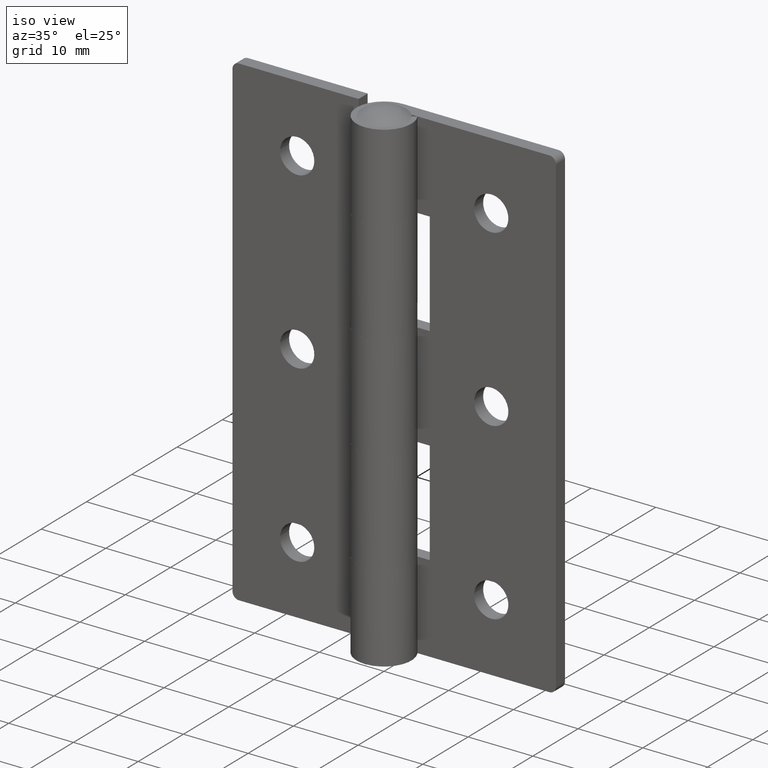
[diagram: clean part render]
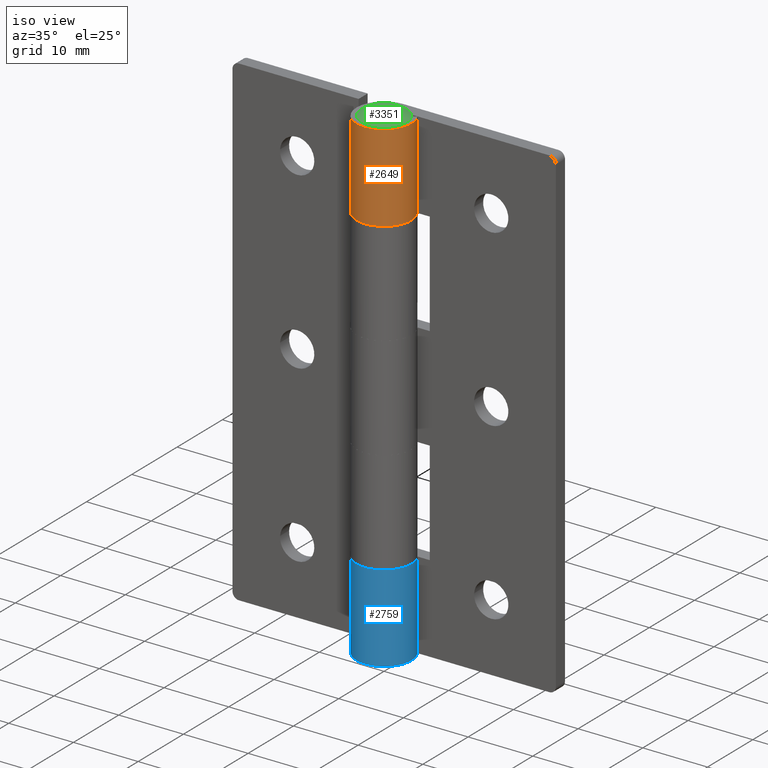
[diagram: same view with three faces highlighted in distinct colors, each labeled with its STEP entity id]
A machine part, iso view with three faces highlighted in distinct colors.
Their STEP definitions:

[orange] entity #2649 — the highlighted face is a freeform B-spline surface patch.
#2436=CARTESIAN_POINT('',(3.636275567115340,2.200000000000000,61.500000000000000));
#2437=VERTEX_POINT('',#2436);
#2443=CARTESIAN_POINT('',(0.0,4.250000000000000,61.500000000000000));
#2444=VERTEX_POINT('',#2443);
#2445=CARTESIAN_POINT('',(3.636275567115340,2.200000000000003,61.500000000000000));
#2446=CARTESIAN_POINT('',(5.333369332345939,-0.605045724368995,61.499999999999993));
#2447=CARTESIAN_POINT('',(3.051051400271963,-2.958645864732462,61.500000000000000));
#2448=CARTESIAN_POINT('',(0.768733468197987,-5.312246005095930,61.499999999999993));
#2449=CARTESIAN_POINT('',(-2.087163146474181,-3.702195294686653,61.500000000000000));
#2450=CARTESIAN_POINT('',(-4.943059761146343,-2.092144584277380,61.499999999999993));
#2451=CARTESIAN_POINT('',(-4.110768176534545,1.078927707861306,61.500000000000000));
#2452=CARTESIAN_POINT('',(-3.278476591922745,4.250000000000001,61.499999999999993));
#2453=CARTESIAN_POINT('',(0.0,4.250000000000000,61.500000000000000));
#2461=(BOUNDED_CURVE()B_SPLINE_CURVE(2,(#2445,#2446,#2447,#2448,#2449,#2450,#2451,#2452,#2453),.UNSPECIFIED.,.F.,.U.)B_SPLINE_CURVE_WITH_KNOTS((3,2,2,2,3),(0.0,0.250000000000000,0.500000000000000,0.750000000000000,1.0),.UNSPECIFIED.)CURVE()GEOMETRIC_REPRESENTATION_ITEM()RATIONAL_B_SPLINE_CURVE((1.0,0.791790800346338,1.0,0.791790800346338,1.0,0.791790800346338,1.0,0.791790800346338,1.0))REPRESENTATION_ITEM(''));
#2462=EDGE_CURVE('',#2437,#2444,#2461,.T.);
#2556=CARTESIAN_POINT('',(-7.806866E-016,4.250000000000000,74.999985000000109));
#2557=VERTEX_POINT('',#2556);
#2563=CARTESIAN_POINT('',(3.636275567115340,2.200000000000000,74.999985000000109));
#2564=VERTEX_POINT('',#2563);
#2565=CARTESIAN_POINT('',(3.636275567115340,2.200000000000003,74.999985000000109));
#2566=CARTESIAN_POINT('',(5.333369332345939,-0.605045724368995,74.999985000000109));
#2567=CARTESIAN_POINT('',(3.051051400271963,-2.958645864732462,74.999985000000109));
#2568=CARTESIAN_POINT('',(0.768733468197987,-5.312246005095930,74.999985000000109));
#2569=CARTESIAN_POINT('',(-2.087163146474181,-3.702195294686653,74.999985000000109));
#2570=CARTESIAN_POINT('',(-4.943059761146343,-2.092144584277380,74.999985000000109));
#2571=CARTESIAN_POINT('',(-4.110768176534545,1.078927707861306,74.999985000000109));
#2572=CARTESIAN_POINT('',(-3.278476591922745,4.250000000000001,74.999985000000109));
#2573=CARTESIAN_POINT('',(0.0,4.250000000000000,74.999985000000109));
#2581=(BOUNDED_CURVE()B_SPLINE_CURVE(2,(#2565,#2566,#2567,#2568,#2569,#2570,#2571,#2572,#2573),.UNSPECIFIED.,.F.,.U.)B_SPLINE_CURVE_WITH_KNOTS((3,2,2,2,3),(0.0,0.250000000000000,0.500000000000000,0.750000000000000,1.0),.UNSPECIFIED.)CURVE()GEOMETRIC_REPRESENTATION_ITEM()RATIONAL_B_SPLINE_CURVE((1.0,0.791790800346338,1.0,0.791790800346338,1.0,0.791790800346338,1.0,0.791790800346338,1.0))REPRESENTATION_ITEM(''));
#2582=EDGE_CURVE('',#2564,#2557,#2581,.T.);
#2613=CARTESIAN_POINT('',(0.111252030308466,4.248543631146117,75.337484625000130));
#2614=CARTESIAN_POINT('',(0.111252030308466,4.248543631146117,61.154062884374987));
#2615=CARTESIAN_POINT('',(-5.135262419208975,4.385928447032795,75.337484625000130));
#2616=CARTESIAN_POINT('',(-5.135262419208975,4.385928447032795,61.154062884374980));
#2617=CARTESIAN_POINT('',(-4.178833357146807,-0.774500983341620,75.337484625000130));
#2618=CARTESIAN_POINT('',(-4.178833357146807,-0.774500983341620,61.154062884374987));
#2619=CARTESIAN_POINT('',(-3.222404295084639,-5.934930413716035,75.337484625000130));
#2620=CARTESIAN_POINT('',(-3.222404295084639,-5.934930413716035,61.154062884374980));
#2621=CARTESIAN_POINT('',(1.626404587551625,-3.926488013172970,75.337484625000130));
#2622=CARTESIAN_POINT('',(1.626404587551625,-3.926488013172970,61.154062884374987));
#2623=CARTESIAN_POINT('',(6.475213470187888,-1.918045612629907,75.337484625000130));
#2624=CARTESIAN_POINT('',(6.475213470187888,-1.918045612629907,61.154062884374980));
#2625=CARTESIAN_POINT('',(3.502536301643569,2.407226506930532,75.337484625000130));
#2626=CARTESIAN_POINT('',(3.502536301643569,2.407226506930532,61.154062884374987));
#2634=(BOUNDED_SURFACE()B_SPLINE_SURFACE(1,2,((#2613,#2615,#2617,#2619,#2621,#2623,#2625),(#2614,#2616,#2618,#2620,#2622,#2624,#2626)),.UNSPECIFIED.,.F.,.F.,.U.)B_SPLINE_SURFACE_WITH_KNOTS((2,2),(3,2,2,3),(0.0,14.183421740625141),(0.0,8.108584055868720,16.217168111737440,24.325752167606161),.UNSPECIFIED.)GEOMETRIC_REPRESENTATION_ITEM()RATIONAL_B_SPLINE_SURFACE(((1.0,0.629320391049838,1.0,0.629320391049838,1.0,0.629320391049838,1.0),(1.0,0.629320391049838,1.0,0.629320391049838,1.0,0.629320391049838,1.0)))REPRESENTATION_ITEM('')SURFACE());
#2635=CARTESIAN_POINT('',(-7.806866E-016,4.250000000000000,74.999985000000109));
#2636=CARTESIAN_POINT('',(0.0,4.250000000000000,61.500000000000000));
#2637=QUASI_UNIFORM_CURVE('',1,(#2635,#2636),.UNSPECIFIED.,.F.,.U.);
#2638=EDGE_CURVE('',#2557,#2444,#2637,.T.);
#2639=ORIENTED_EDGE('',*,*,#2638,.T.);
#2640=ORIENTED_EDGE('',*,*,#2462,.F.);
#2641=CARTESIAN_POINT('',(3.636275567115340,2.200000000000000,74.999985000000109));
#2642=CARTESIAN_POINT('',(3.636275567115340,2.200000000000000,61.500000000000000));
#2643=QUASI_UNIFORM_CURVE('',1,(#2641,#2642),.UNSPECIFIED.,.F.,.U.);
#2644=EDGE_CURVE('',#2564,#2437,#2643,.T.);
#2645=ORIENTED_EDGE('',*,*,#2644,.F.);
#2646=ORIENTED_EDGE('',*,*,#2582,.T.);
#2647=EDGE_LOOP('',(#2639,#2640,#2645,#2646));
#2648=FACE_OUTER_BOUND('',#2647,.T.);
#2649=ADVANCED_FACE('',(#2648),#2634,.T.);

[blue] entity #2759 — the highlighted face is a freeform B-spline surface patch.
#2232=CARTESIAN_POINT('',(-7.806864E-016,4.250000000000000,13.499985000000001));
#2233=VERTEX_POINT('',#2232);
#2234=CARTESIAN_POINT('',(3.636275567115340,2.200000000000000,13.499985000000040));
#2235=VERTEX_POINT('',#2234);
#2236=CARTESIAN_POINT('',(-7.806864E-016,4.250000000000000,13.499985000000001));
#2237=CARTESIAN_POINT('',(-3.278476591922742,4.250000000000001,13.499985000000047));
#2238=CARTESIAN_POINT('',(-4.110768176534545,1.078927707861309,13.499985000000040));
#2239=CARTESIAN_POINT('',(-4.943059761146345,-2.092144584277381,13.499985000000047));
#2240=CARTESIAN_POINT('',(-2.087163146474180,-3.702195294686654,13.499985000000040));
#2241=CARTESIAN_POINT('',(0.768733468197986,-5.312246005095928,13.499985000000047));
#2242=CARTESIAN_POINT('',(3.051051400271961,-2.958645864732464,13.499985000000040));
#2243=CARTESIAN_POINT('',(5.333369332345939,-0.605045724368997,13.499985000000047));
#2244=CARTESIAN_POINT('',(3.636275567115342,2.200000000000001,13.499985000000040));
#2252=(BOUNDED_CURVE()B_SPLINE_CURVE(2,(#2236,#2237,#2238,#2239,#2240,#2241,#2242,#2243,#2244),.UNSPECIFIED.,.F.,.U.)B_SPLINE_CURVE_WITH_KNOTS((3,2,2,2,3),(0.0,0.250000000000000,0.500000000000000,0.750000000000000,1.0),.UNSPECIFIED.)CURVE()GEOMETRIC_REPRESENTATION_ITEM()RATIONAL_B_SPLINE_CURVE((1.0,0.791790800346338,1.0,0.791790800346338,1.0,0.791790800346338,1.0,0.791790800346338,1.0))REPRESENTATION_ITEM(''));
#2253=EDGE_CURVE('',#2233,#2235,#2252,.T.);
#2478=CARTESIAN_POINT('',(-7.806866E-016,4.250000000000000,0.0));
#2479=VERTEX_POINT('',#2478);
#2514=CARTESIAN_POINT('',(3.636275567115340,2.200000000000000,0.0));
#2515=VERTEX_POINT('',#2514);
#2521=CARTESIAN_POINT('',(3.636275567115340,2.200000000000003,0.0));
#2522=CARTESIAN_POINT('',(5.333369332345939,-0.605045724368995,0.0));
#2523=CARTESIAN_POINT('',(3.051051400271963,-2.958645864732462,0.0));
#2524=CARTESIAN_POINT('',(0.768733468197987,-5.312246005095930,0.0));
#2525=CARTESIAN_POINT('',(-2.087163146474181,-3.702195294686653,0.0));
#2526=CARTESIAN_POINT('',(-4.943059761146343,-2.092144584277380,0.0));
#2527=CARTESIAN_POINT('',(-4.110768176534545,1.078927707861306,0.0));
#2528=CARTESIAN_POINT('',(-3.278476591922745,4.250000000000001,0.0));
#2529=CARTESIAN_POINT('',(0.0,4.250000000000000,0.0));
#2537=(BOUNDED_CURVE()B_SPLINE_CURVE(2,(#2521,#2522,#2523,#2524,#2525,#2526,#2527,#2528,#2529),.UNSPECIFIED.,.F.,.U.)B_SPLINE_CURVE_WITH_KNOTS((3,2,2,2,3),(0.0,0.250000000000000,0.500000000000000,0.750000000000000,1.0),.UNSPECIFIED.)CURVE()GEOMETRIC_REPRESENTATION_ITEM()RATIONAL_B_SPLINE_CURVE((1.0,0.791790800346338,1.0,0.791790800346338,1.0,0.791790800346338,1.0,0.791790800346338,1.0))REPRESENTATION_ITEM(''));
#2538=EDGE_CURVE('',#2515,#2479,#2537,.T.);
#2723=CARTESIAN_POINT('',(0.037087775868085,4.249838173022727,13.837484625000039));
#2724=CARTESIAN_POINT('',(0.037087775868085,4.249838173022727,-0.345937115625000));
#2725=CARTESIAN_POINT('',(-5.179922544774496,4.295366332353994,13.837484625000043));
#2726=CARTESIAN_POINT('',(-5.179922544774496,4.295366332353994,-0.345937115625000));
#2727=CARTESIAN_POINT('',(-4.169538958770293,-0.823070392674126,13.837484625000039));
#2728=CARTESIAN_POINT('',(-4.169538958770293,-0.823070392674126,-0.345937115625000));
#2729=CARTESIAN_POINT('',(-3.159155372766089,-5.941507117702246,13.837484625000043));
#2730=CARTESIAN_POINT('',(-3.159155372766089,-5.941507117702246,-0.345937115625000));
#2731=CARTESIAN_POINT('',(1.649220316104676,-3.916959579692851,13.837484625000039));
#2732=CARTESIAN_POINT('',(1.649220316104676,-3.916959579692851,-0.345937115625000));
#2733=CARTESIAN_POINT('',(6.457596004975440,-1.892412041683455,13.837484625000043));
#2734=CARTESIAN_POINT('',(6.457596004975440,-1.892412041683455,-0.345937115625000));
#2735=CARTESIAN_POINT('',(3.502536301643567,2.407226506930539,13.837484625000039));
#2736=CARTESIAN_POINT('',(3.502536301643567,2.407226506930539,-0.345937115625000));
#2744=(BOUNDED_SURFACE()B_SPLINE_SURFACE(1,2,((#2723,#2725,#2727,#2729,#2731,#2733,#2735),(#2724,#2726,#2728,#2730,#2732,#2734,#2736)),.UNSPECIFIED.,.F.,.F.,.U.)B_SPLINE_SURFACE_WITH_KNOTS((2,2),(3,2,2,3),(0.0,14.183421740625050),(0.0,8.078254386780145,16.156508773560290,24.234763160340439),.UNSPECIFIED.)GEOMETRIC_REPRESENTATION_ITEM()RATIONAL_B_SPLINE_SURFACE(((1.0,0.631578351302498,1.0,0.631578351302498,1.0,0.631578351302498,1.0),(1.0,0.631578351302498,1.0,0.631578351302498,1.0,0.631578351302498,1.0)))REPRESENTATION_ITEM('')SURFACE());
#2745=CARTESIAN_POINT('',(3.636275567115340,2.200000000000000,13.499985000000040));
#2746=CARTESIAN_POINT('',(3.636275567115340,2.200000000000000,0.0));
#2747=QUASI_UNIFORM_CURVE('',1,(#2745,#2746),.UNSPECIFIED.,.F.,.U.);
#2748=EDGE_CURVE('',#2235,#2515,#2747,.T.);
#2749=ORIENTED_EDGE('',*,*,#2748,.F.);
#2750=ORIENTED_EDGE('',*,*,#2253,.F.);
#2751=CARTESIAN_POINT('',(-7.806864E-016,4.250000000000000,13.499985000000001));
#2752=CARTESIAN_POINT('',(-7.806866E-016,4.250000000000000,0.0));
#2753=QUASI_UNIFORM_CURVE('',1,(#2751,#2752),.UNSPECIFIED.,.F.,.U.);
#2754=EDGE_CURVE('',#2233,#2479,#2753,.T.);
#2755=ORIENTED_EDGE('',*,*,#2754,.T.);
#2756=ORIENTED_EDGE('',*,*,#2538,.F.);
#2757=EDGE_LOOP('',(#2749,#2750,#2755,#2756));
#2758=FACE_OUTER_BOUND('',#2757,.T.);
#2759=ADVANCED_FACE('',(#2758),#2744,.T.);

[green] entity #3351 — the highlighted face is a freeform B-spline surface patch.
#3280=CARTESIAN_POINT('',(-3.500000000000000,0.0,74.999985000000009));
#3281=VERTEX_POINT('',#3280);
#3282=CARTESIAN_POINT('',(3.500000000000000,0.0,74.999985000000009));
#3283=VERTEX_POINT('',#3282);
#3284=CARTESIAN_POINT('',(-3.500000000000000,0.0,74.999985000000009));
#3285=CARTESIAN_POINT('',(-3.500000000000000,3.500000000000000,74.999985000000009));
#3286=CARTESIAN_POINT('',(0.0,3.500000000000000,74.999985000000009));
#3287=CARTESIAN_POINT('',(3.500000000000000,3.500000000000000,74.999985000000009));
#3288=CARTESIAN_POINT('',(3.500000000000000,0.0,74.999985000000009));
#3296=(BOUNDED_CURVE()B_SPLINE_CURVE(2,(#3284,#3285,#3286,#3287,#3288),.UNSPECIFIED.,.F.,.U.)B_SPLINE_CURVE_WITH_KNOTS((3,2,3),(0.0,0.250000000000000,0.500000000000000),.UNSPECIFIED.)CURVE()GEOMETRIC_REPRESENTATION_ITEM()RATIONAL_B_SPLINE_CURVE((1.0,0.707106781186547,1.0,0.707106781186547,1.0))REPRESENTATION_ITEM(''));
#3297=EDGE_CURVE('',#3281,#3283,#3296,.T.);
#3299=CARTESIAN_POINT('',(3.500000000000000,0.0,74.999985000000009));
#3300=CARTESIAN_POINT('',(3.500000000000000,-3.500000000000000,74.999985000000009));
#3301=CARTESIAN_POINT('',(0.0,-3.500000000000000,74.999985000000009));
#3302=CARTESIAN_POINT('',(-3.500000000000000,-3.500000000000000,74.999985000000009));
#3303=CARTESIAN_POINT('',(-3.500000000000000,0.0,74.999985000000009));
#3311=(BOUNDED_CURVE()B_SPLINE_CURVE(2,(#3299,#3300,#3301,#3302,#3303),.UNSPECIFIED.,.F.,.U.)B_SPLINE_CURVE_WITH_KNOTS((3,2,3),(0.500000000000000,0.750000000000000,1.0),.UNSPECIFIED.)CURVE()GEOMETRIC_REPRESENTATION_ITEM()RATIONAL_B_SPLINE_CURVE((1.0,0.707106781186547,1.0,0.707106781186547,1.0))REPRESENTATION_ITEM(''));
#3312=EDGE_CURVE('',#3283,#3281,#3311,.T.);
#3323=CARTESIAN_POINT('',(-3.316994760649822,-3.316994760649822,73.644011638392215));
#3324=CARTESIAN_POINT('',(-1.880206320893974,-3.760412641787952,74.772814265604168));
#3325=CARTESIAN_POINT('',(1.880206443247092,-3.760412641787952,74.772814265604168));
#3326=CARTESIAN_POINT('',(3.316994925595754,-3.316994709744639,73.644011508803558));
#3327=CARTESIAN_POINT('',(-3.760412641787951,-1.880206320893976,74.772814265604168));
#3328=CARTESIAN_POINT('',(-2.170338493399130,-2.170338493399133,76.249984999999995));
#3329=CARTESIAN_POINT('',(2.170338634632399,-2.170338493399133,76.249984999999995));
#3330=CARTESIAN_POINT('',(3.760412821069220,-1.880206288181498,74.772814099052766));
#3331=CARTESIAN_POINT('',(-3.760412641787951,1.880206443247090,74.772814265604168));
#3332=CARTESIAN_POINT('',(-2.170338493399130,2.170338634632396,76.249984999999995));
#3333=CARTESIAN_POINT('',(2.170338634632399,2.170338634632396,76.249984999999995));
#3334=CARTESIAN_POINT('',(3.760412821069220,1.880206410534610,74.772814099052766));
#3335=CARTESIAN_POINT('',(-3.316994709744638,3.316994925595753,73.644011508803587));
#3336=CARTESIAN_POINT('',(-1.880206288181496,3.760412821069218,74.772814099052766));
#3337=CARTESIAN_POINT('',(1.880206410534611,3.760412821069218,74.772814099052766));
#3338=CARTESIAN_POINT('',(3.316994874690569,3.316994874690568,73.644011379214959));
#3346=(BOUNDED_SURFACE()B_SPLINE_SURFACE(2,2,((#3323,#3327,#3331,#3335),(#3324,#3328,#3332,#3336),(#3325,#3329,#3333,#3337),(#3326,#3330,#3334,#3338)),.UNSPECIFIED.,.F.,.F.,.U.)B_SPLINE_SURFACE_WITH_KNOTS((3,1,3),(3,1,3),(0.0,4.029763245051964,8.059526752337954),(0.0,4.029763245051960,8.059526752337947),.UNSPECIFIED.)GEOMETRIC_REPRESENTATION_ITEM()RATIONAL_B_SPLINE_SURFACE(((1.308617378083497,1.154308689041748,1.154308689041748,1.308617398166558),(1.154308689041748,1.0,1.0,1.154308709124809),(1.154308689041748,1.0,1.0,1.154308709124809),(1.308617398166558,1.154308709124809,1.154308709124809,1.308617418249619)))REPRESENTATION_ITEM('')SURFACE());
#3347=ORIENTED_EDGE('',*,*,#3312,.F.);
#3348=ORIENTED_EDGE('',*,*,#3297,.F.);
#3349=EDGE_LOOP('',(#3347,#3348));
#3350=FACE_OUTER_BOUND('',#3349,.T.);
#3351=ADVANCED_FACE('',(#3350),#3346,.T.);